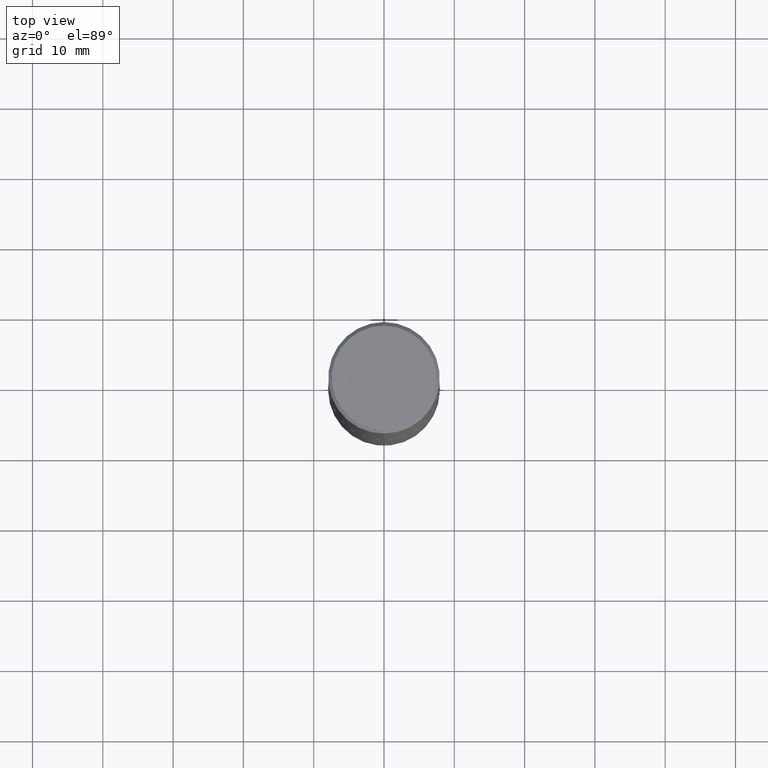
[diagram: clean part render]
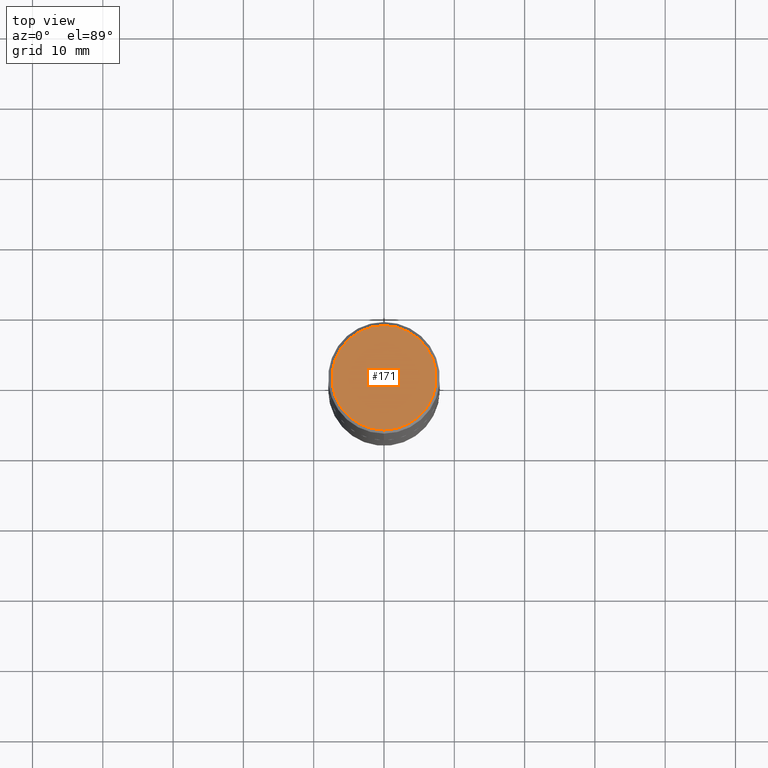
[diagram: same view with one face highlighted and labeled with its STEP entity id]
A machine part, top view. The second image highlights one B-rep face of the part: STEP entity #171.
In plain terms, the highlighted planar face has unit normal (0, -0, -1).
Its self-contained STEP definition (entity closure, byte-faithful):
#1 = CARTESIAN_POINT ( 'NONE',  ( -2.150299018297948745E-46, 3.071607443834507134E-32, 8.795209847407834549E-18 ) ) ;
#15 = CARTESIAN_POINT ( 'NONE',  ( -2.075300644325887493E-15, -0.2924999999999999822, 1.030311686326234990E-15 ) ) ;
#26 = CARTESIAN_POINT ( 'NONE',  ( 2.042516583223232540E-15, 0.2924999999999999822, -1.017118871555123169E-15 ) ) ;
#47 = DIRECTION ( 'NONE',  ( -6.982962677686265133E-15, -1.000000000000000000, 3.492364022149836753E-15 ) ) ;
#53 = VERTEX_POINT ( 'NONE', #15 ) ;
#80 = CIRCLE ( 'NONE', #161, 0.2924999999999999822 ) ;
#89 = EDGE_CURVE ( 'NONE', #276, #53, #274, .T. ) ;
#126 = EDGE_LOOP ( 'NONE', ( #313, #259 ) ) ;
#127 = FACE_OUTER_BOUND ( 'NONE', #126, .T. ) ;
#133 = DIRECTION ( 'NONE',  ( -2.444852431726452894E-29, 3.492364022149836358E-15, 1.000000000000000000 ) ) ;
#147 = DIRECTION ( 'NONE',  ( -2.444852431726452894E-29, 3.492364022149836358E-15, 1.000000000000000000 ) ) ;
#161 = AXIS2_PLACEMENT_3D ( 'NONE', #1, #133, #255 ) ;
#171 = ADVANCED_FACE ( 'NONE', ( #127 ), #348, .F. ) ;
#217 = DIRECTION ( 'NONE',  ( 2.444852431726452333E-29, -3.492364022149836358E-15, -1.000000000000000000 ) ) ;
#244 = CARTESIAN_POINT ( 'NONE',  ( -2.150299018297948745E-46, 3.071607443834507134E-32, 8.795209847407834549E-18 ) ) ;
#247 = EDGE_CURVE ( 'NONE', #53, #276, #80, .T. ) ;
#255 = DIRECTION ( 'NONE',  ( -6.982962677686265133E-15, -1.000000000000000000, 3.492364022149836753E-15 ) ) ;
#258 = CARTESIAN_POINT ( 'NONE',  ( 2.112346210000095838E-15, 0.2924999999999999822, -1.012721266631419361E-15 ) ) ;
#259 = ORIENTED_EDGE ( 'NONE', *, *, #247, .T. ) ;
#274 = CIRCLE ( 'NONE', #398, 0.2924999999999999822 ) ;
#276 = VERTEX_POINT ( 'NONE', #258 ) ;
#281 = DIRECTION ( 'NONE',  ( 6.982962677686265922E-15, 1.000000000000000000, -3.492364022149836358E-15 ) ) ;
#288 = AXIS2_PLACEMENT_3D ( 'NONE', #26, #217, #281 ) ;
#313 = ORIENTED_EDGE ( 'NONE', *, *, #89, .T. ) ;
#348 = PLANE ( 'NONE',  #288 ) ;
#398 = AXIS2_PLACEMENT_3D ( 'NONE', #244, #147, #47 ) ;